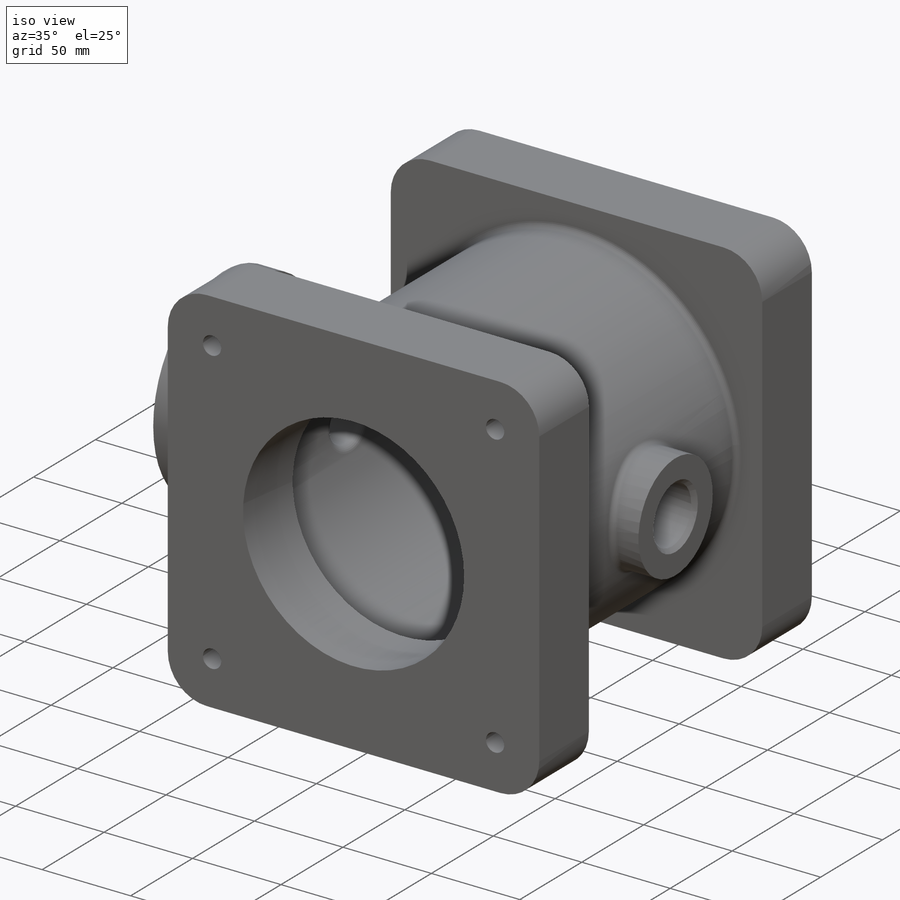
[diagram: iso view]
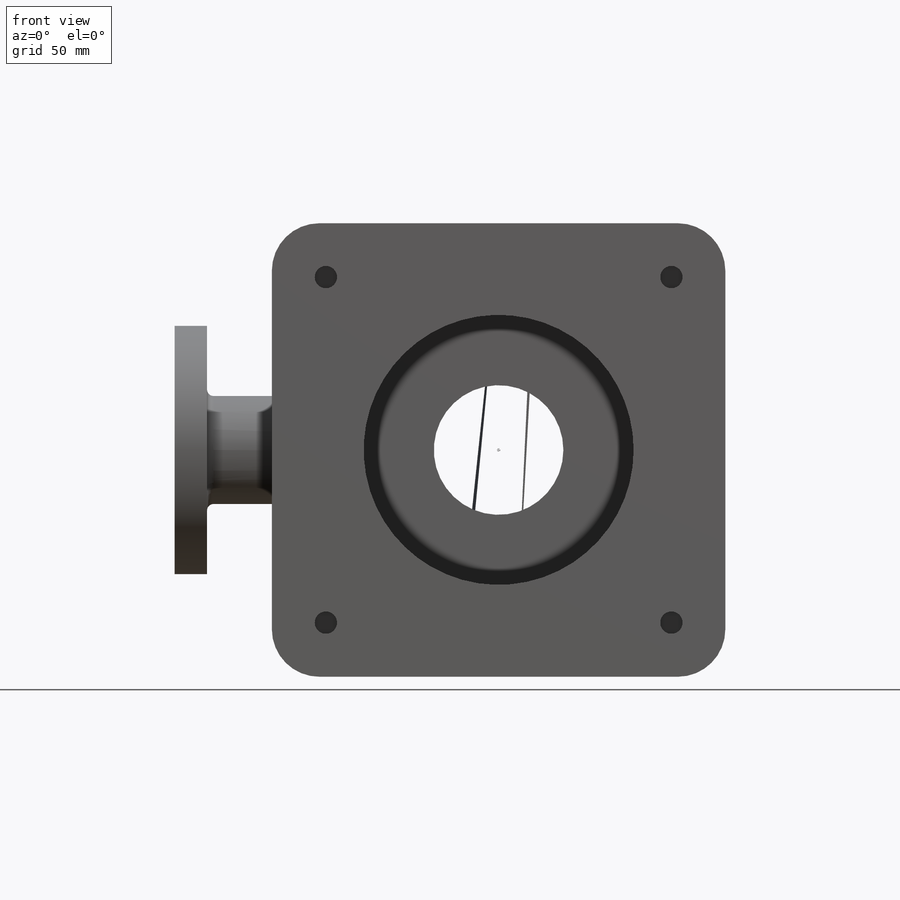
[diagram: front view]
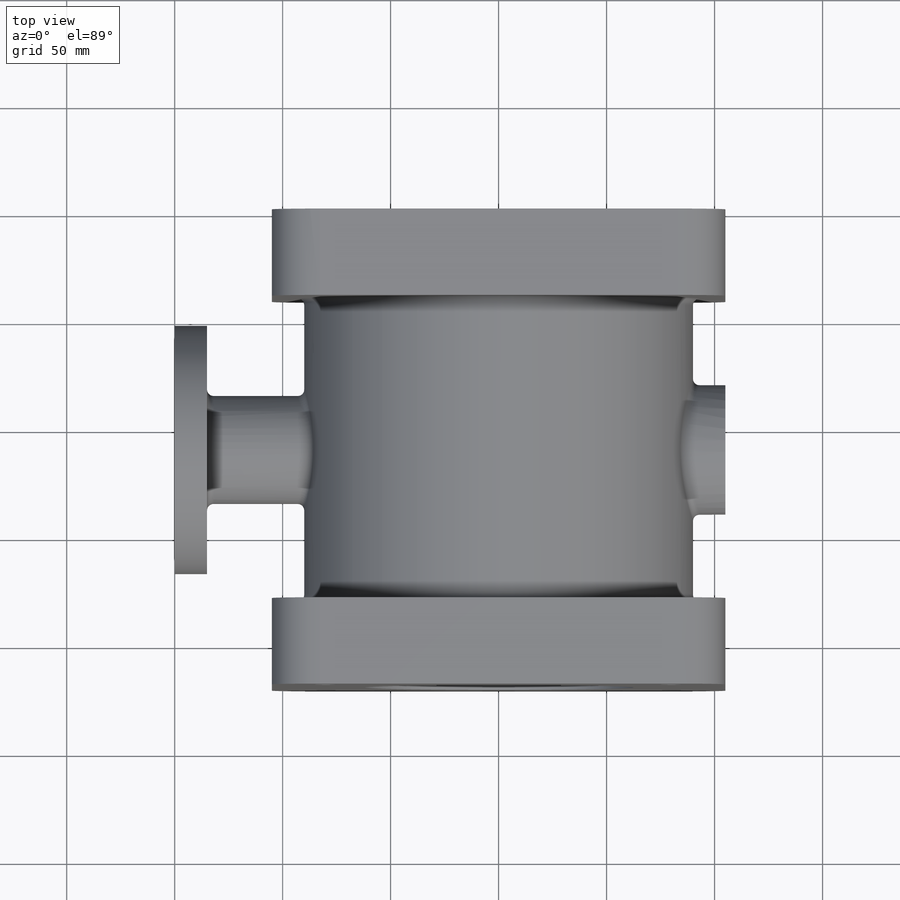
[diagram: top view]
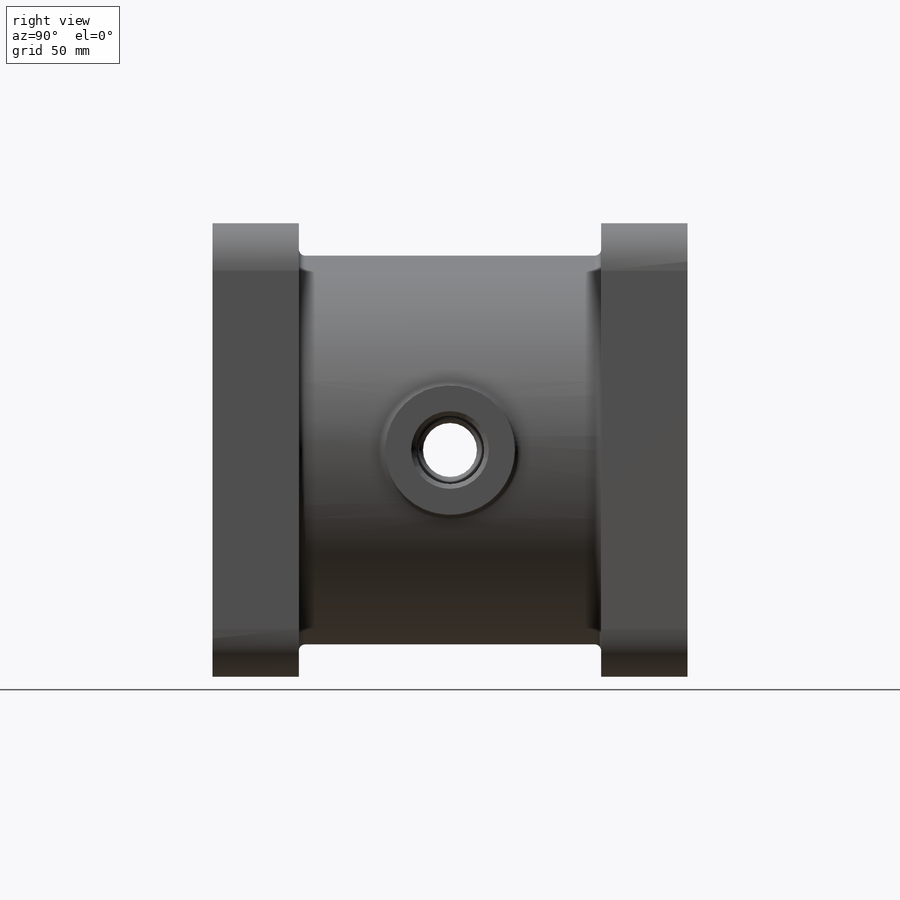
[diagram: right view]
SOLIDWORKS PART (.sldprt)
format: sldprt  version: not decoded by parser v0  size: 793,088 bytes
history: native  units: mm
features: sketch x13, cut_extrude x7, extrude x6, thread x5, plane x4, chamfer x2, fillet x2, material x1, mirror x1, pattern_circular x1 (+9 scaffold rows collapsed)
feature tree (51):
  scaffold x9  (default folders/planes/origin — collapsed)
  material  "Сталь"
  plane  "Спереди"
  plane  "Сверху"
  plane  "Справа"
  sketch  "Эскиз1"  dims[D1=0.0mm]
  extrude  "Бобышка-Вытянуть1"  Depth=40mm
  sketch  "Эскиз2"  dims[D1=180.0mm D2=160.0mm]
  extrude  "Бобышка-Вытянуть2"  Depth=70mm
  chamfer  "Фаска1"  Distance=15mm Angle=45deg
  sketch  "Эскиз3"  dims[D1=60.0mm]
  cut_extrude  "Вырез-Вытянуть1"  [1 undecoded]
  sketch  "Эскиз4"  dims[D1=10.344mm]
  cut_extrude  "Вырез-Вытянуть2"  [1 undecoded]
  thread  "Условное изображение резьбы2"  Diameter=12mm  [1 undecoded]
  thread  "Условное изображение резьбы3"  Diameter=12mm  [1 undecoded]
  thread  "Условное изображение резьбы4"  Diameter=12mm  [1 undecoded]
  thread  "Условное изображение резьбы5"  Diameter=12mm  [1 undecoded]
  sketch  "Эскиз5"  dims[D1=125.0mm]
  cut_extrude  "Вырез-Вытянуть3"  Depth=5mm
  plane  "Плоскость1"
  mirror  "Зеркальное отражение1"
  sketch  "Эскиз6"  dims[D1=0.0mm]
  extrude  "Бобышка-Вытянуть3"  [1 undecoded]
  sketch  "Эскиз7"  dims[D1=125.0mm]
  cut_extrude  "Вырез-Вытянуть4"  [1 undecoded]
  sketch  "Эскиз8"  dims[D1=115.0mm]
  extrude  "Бобышка-Вытянуть4"  Depth=15mm
  sketch  "Эскиз9"  dims[D1=50.0mm]
  extrude  "Бобышка-Вытянуть5"  Depth=15mm
  sketch  "Эскиз10"  dims[D1=25.0mm]
  cut_extrude  "Вырез-Вытянуть5"  [1 undecoded]
  sketch  "Эскиз11"  dims[D1=15.0mm D2=80.0mm]
  cut_extrude  "Вырез-Вытянуть6"  [1 undecoded]
  pattern_circular  "Круговой массив1"  Count=4 Angle=360deg
  fillet  "Скругление1"  Radius=4mm
  sketch  "Эскиз12"  dims[D1=60.0mm]
  extrude  "Бобышка-Вытянуть6"  Depth=15mm
  sketch  "Эскиз13"  dims[D1=31.61mm]
  cut_extrude  "Вырез-Вытянуть7"  [1 undecoded]
  thread  "Условное изображение резьбы6"  Diameter=36mm  [1 undecoded]
  chamfer  "Фаска2"  Distance=2.195mm Angle=45deg
  fillet  "Скругление2"  Radius=3mm
decode coverage: 29 of 37 modeling features carry decoded parameters
note: 12 parameter values undecoded
summary: no parameter record found for 7 features
note: suppression state not decoded; provenance and decode notes live in map.json
